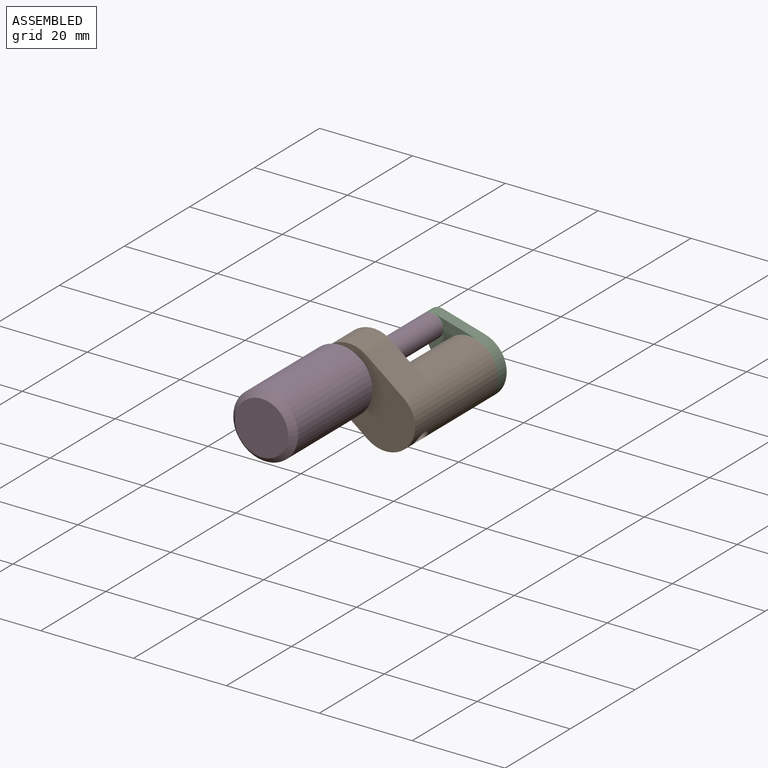
[diagram: assembled view]
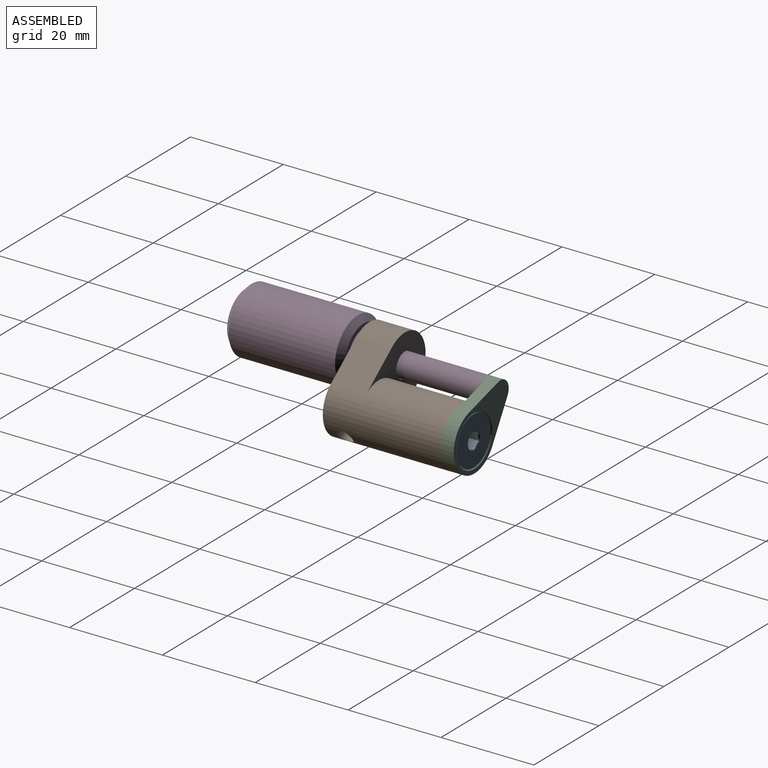
[diagram: assembled view, second angle]
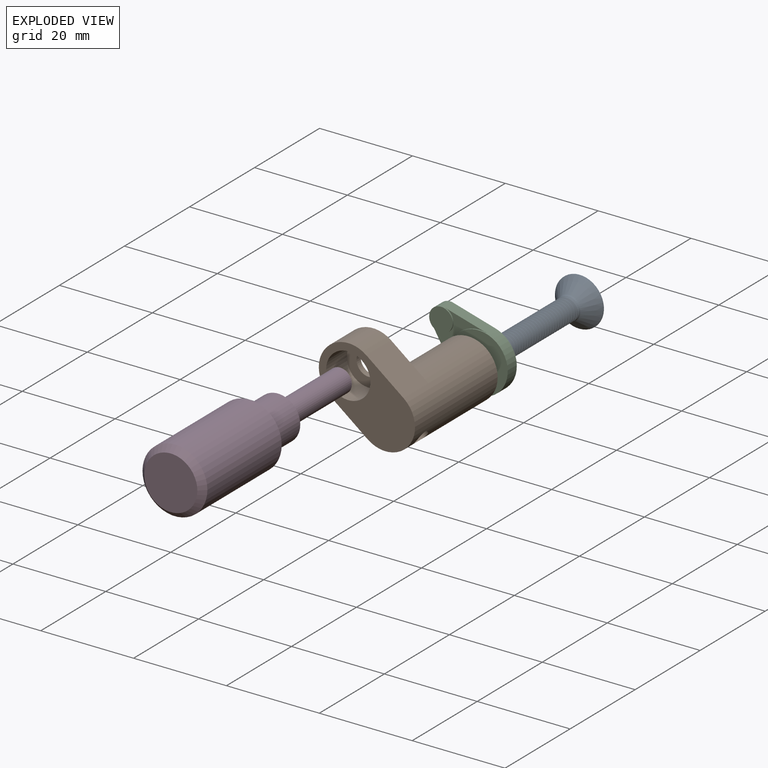
[diagram: exploded view]
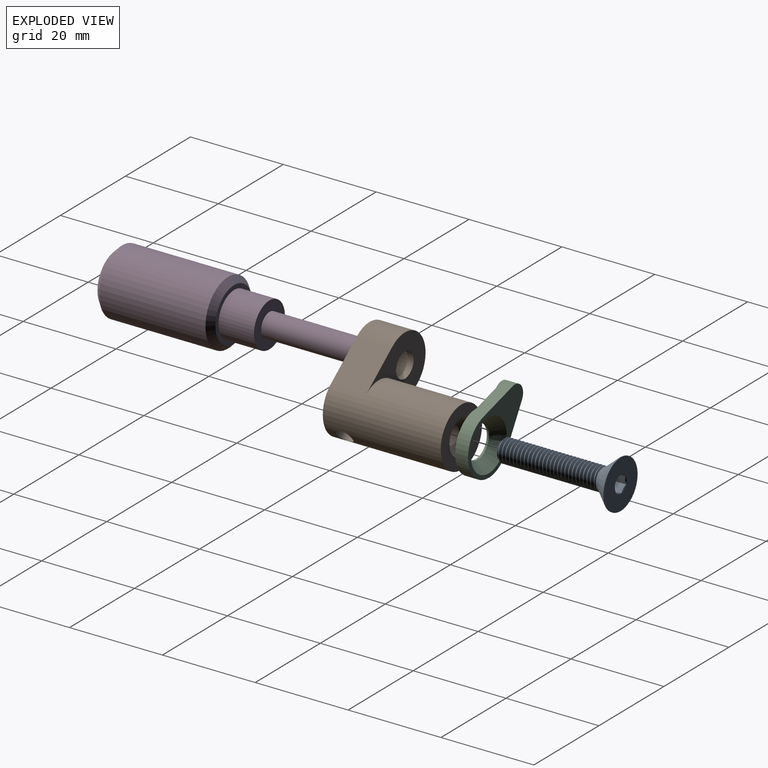
[diagram: exploded view, second angle]
ASSEMBLY  parts=4 mates=3
PART A: 25 faces, bbox 11x11x26.3 mm
  f0: cylinder r=2.41mm len=21.2mm, axis (0,0,-1), area 40.1mm2, adj f1,f6,f7,f24
  f1: cone r=1.82mm half-angle=45deg, axis (0,0,1), area 1.3mm2, adj f0,f2,f6,f24
  f2: cone r=1.82mm half-angle=45deg, axis (0,0,1), area 4.8mm2, adj f1,f3,f5,f6
  f3: cylinder r=1.9mm len=21.21mm, axis (0,0,1), area 31.6mm2, adj f2,f4,f6,f24
  f4: cone r=2.41mm half-angle=46deg, axis (0,0,1), area 5mm2, adj f3,f6,f7,f24
  f5: plane 3.64x3.64mm, normal (0,0,-1), area 10.4mm2, adj f2
  f6: bspline ~22.42x4.83mm, area 215.7mm2, adj f0,f1,f2,f3,f4
  f7: torus R=3mm, axis (0,0,1), area 6.4mm2, adj f0,f4,f8
  f8: cone r=2.56mm half-angle=41deg, axis (0,0,1), area 99.2mm2, adj f7,f9
  f9: cylinder r=5.22mm len=10.44mm, axis (0,0,1), area 5.3mm2, adj f8,f10
  f10: plane 10.44x10.44mm, normal (0,0,1), area 75mm2, adj f9,f11,f19,f20,f21,f22,f23
  f11: cone r=1.83mm half-angle=60deg, axis (0,0,1), area 0mm2, adj f10,f12
  f12: plane 2.83x2.4mm, normal (-1,0,0), area 4mm2, adj f11,f13,f17,f18
  f13: plane 3.67x3.18mm, normal (0,0,1), area 8.7mm2, adj f12,f14,f15,f16,f17,f18
  f14: plane 2.83x2.16mm, normal (0.5,0.87,0), area 4mm2, adj f13,f15,f18,f22
  f15: plane 2.83x2.4mm, normal (1,0,0), area 4mm2, adj f13,f14,f16,f21
  f16: plane 2.83x2.16mm, normal (0.5,-0.87,0), area 4mm2, adj f13,f15,f17,f20
  f17: plane 2.83x2.16mm, normal (-0.5,-0.87,0), area 4mm2, adj f12,f13,f16,f19
  f18: plane 2.83x2.16mm, normal (-0.5,0.87,0), area 4mm2, adj f12,f13,f14,f23
  f19: cone r=1.83mm half-angle=60deg, axis (0,0,1), area 0mm2, adj f10,f17
  f20: cone r=1.83mm half-angle=60deg, axis (0,0,1), area 0mm2, adj f10,f16
  f21: cone r=1.83mm half-angle=60deg, axis (0,0,1), area 0mm2, adj f10,f15
  f22: cone r=1.83mm half-angle=60deg, axis (0,0,1), area 0mm2, adj f10,f14
  f23: cone r=1.83mm half-angle=60deg, axis (0,0,1), area 0mm2, adj f10,f18
  f24: bspline ~21.83x4.83mm, area 215.8mm2, adj f0,f1,f3,f4
PART B: 14 faces, bbox 25.4x22.9x12.7 mm
  f0: cylinder r=4.76mm len=9.53mm, axis (-1,0,0), area 180.5mm2, adj f2,f6,f10
  f1: cylinder r=6.35mm len=25.4mm, axis (-1,0,0), area 851.9mm2, adj f2,f3,f5,f8,f9,f10
  f2: plane 22.86x12.7mm, normal (1,0,0), area 184.5mm2, adj f0,f1,f3,f4,f5
  f3: plane 10.16x7.62mm, normal (0,0,1), area 77.4mm2, adj f1,f2,f4,f8
  f4: cylinder r=6.35mm len=12.7mm, axis (-1,0,0), area 152mm2, adj f2,f3,f5,f8
  f5: plane 10.16x7.62mm, normal (0,0,-1), area 77.4mm2, adj f1,f2,f4,f8
  f6: plane 9.53x9.53mm, normal (1,0,0), area 48.9mm2, adj f0,f7
  f7: cylinder r=2.67mm len=5.33mm, axis (1,0,0), area 21.3mm2, adj f6,f8
  f8: plane 16.51x12.7mm, normal (-1,0,0), area 106.7mm2, adj f1,f3,f4,f5,f7
  f9: plane 12.7x12.7mm, normal (-1,0,0), area 84.2mm2, adj f1,f13
  f10: cylinder r=1.73mm len=12.07mm, axis (0,-1,0), area 127.9mm2, adj f0,f1
  f11: cone r=0mm half-angle=59deg, axis (-1,0,0), area 14.9mm2, adj f12
  f12: cylinder r=2.02mm len=14.61mm, axis (-1,0,0), area 185.3mm2, adj f11,f13
  f13: cone r=2.02mm half-angle=41deg, axis (-1,0,0), area 45.2mm2, adj f9,f12
PART C: 10 faces, bbox 2.8x19.1x12.7 mm
  f0: cylinder r=6.35mm len=12.7mm, axis (1,0,0), area 73.2mm2, adj f1,f2,f3,f4,f6
  f1: plane 12.7x12.7mm, normal (1,0,0), area 89.8mm2, adj f0,f9
  f2: plane 11.77x8.73mm, normal (1,0,0), area 23.3mm2, adj f0,f3,f4,f5
  f3: plane 8.73x3.53mm, normal (0,0.37,-0.93), area 23.9mm2, adj f0,f2,f5,f6
  f4: plane 8.73x3.53mm, normal (0,0.37,0.93), area 23.9mm2, adj f0,f2,f5,f6
  f5: cylinder r=2.54mm len=5.08mm, axis (1,0,0), area 19.4mm2, adj f2,f3,f4,f6,f7
  f6: plane 19.05x12.7mm, normal (-1,0,0), area 76.1mm2, adj f0,f3,f4,f5,f8
  f7: plane 5.08x5.08mm, normal (1,0,0), area 20.3mm2, adj f5
  f8: cone r=2.55mm half-angle=41deg, axis (-1,0,0), area 87.3mm2, adj f6,f9
  f9: cylinder r=3.43mm len=6.85mm, axis (1,0,0), area 9.4mm2, adj f1,f8
PART D: 9 faces, bbox 52.1x14x14 mm
  f0: cylinder r=2.54mm len=19.05mm, axis (-1,0,0), area 304mm2, adj f1,f3
  f1: plane 5.08x5.08mm, normal (-1,0,0), area 20.3mm2, adj f0
  f2: cylinder r=4.76mm len=9.53mm, axis (-1,0,0), area 228mm2, adj f3,f6
  f3: plane 9.53x9.53mm, normal (-1,0,0), area 51mm2, adj f0,f2
  f4: cylinder r=6.99mm len=22.86mm, axis (-1,0,0), area 1003.3mm2, adj f7,f8
  f5: plane 11.43x11.43mm, normal (1,0,0), area 102.6mm2, adj f7
  f6: plane 11.43x11.43mm, normal (-1,0,0), area 31.4mm2, adj f2,f8
  f7: cone r=5.71mm half-angle=45deg, axis (-1,0,0), area 71.7mm2, adj f4,f5
  f8: cone r=6.99mm half-angle=45deg, axis (1,0,0), area 71.7mm2, adj f4,f6
PLACE A rot(axis=(-0.82,-0.4,-0.4),101.2deg) t=(8.03,2.67,-6.22)mm
PLACE B rot(axis=(0.69,-0.69,-0.24),153.5deg) t=(0,0,0)mm
PLACE C rot(axis=(0.69,-0.69,-0.24),153.5deg) t=(0,0,0)mm
PLACE D rot(axis=(0.58,-0.58,-0.58),120deg) t=(0,0,0)mm
MATE revolute B.f7 <-> D.f2  axis (0,-1,0) through (0,-19.05,0)mm
MATE fastened A.f9 <-> C.f0  axis (0,1,0) through (8.03,2.67,-6.22)mm
MATE fastened B.f1 <-> C.f9  axis (0,1,0) through (8.03,0,-6.22)mm
